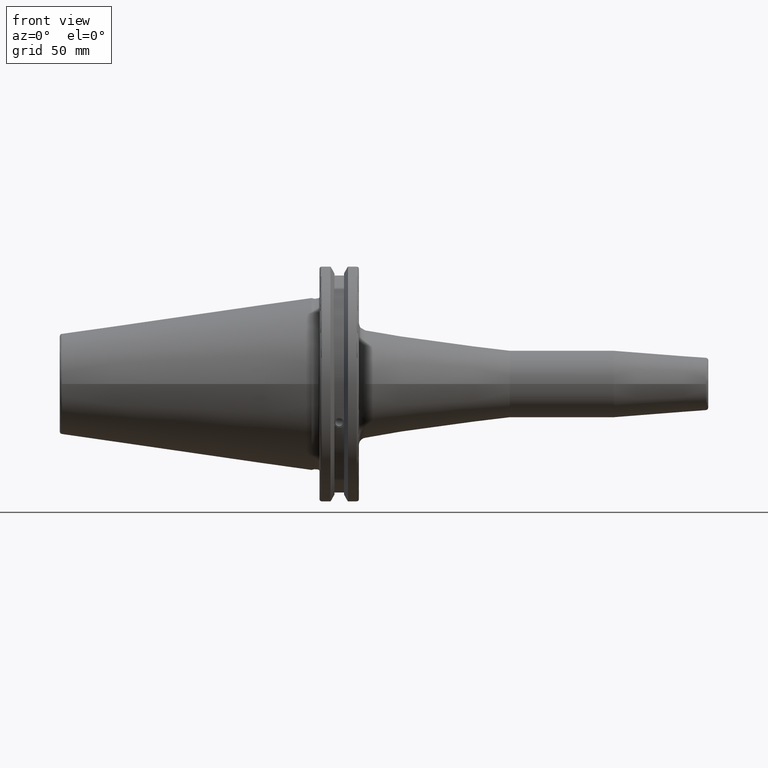
[diagram: clean part render]
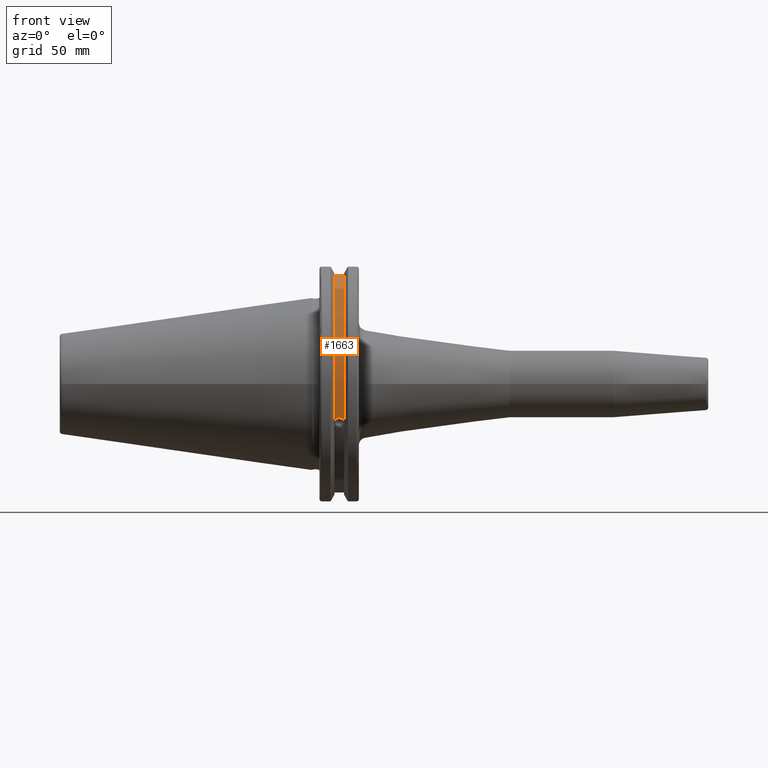
[diagram: same view with one face highlighted and labeled with its STEP entity id]
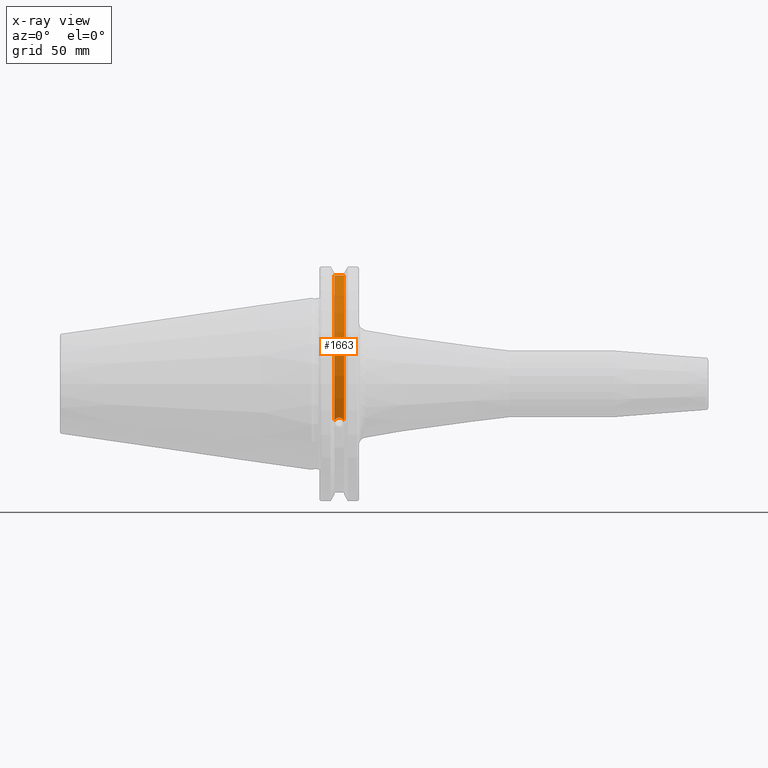
[diagram: x-ray of the same camera — body ghosted, the highlighted face saturated]
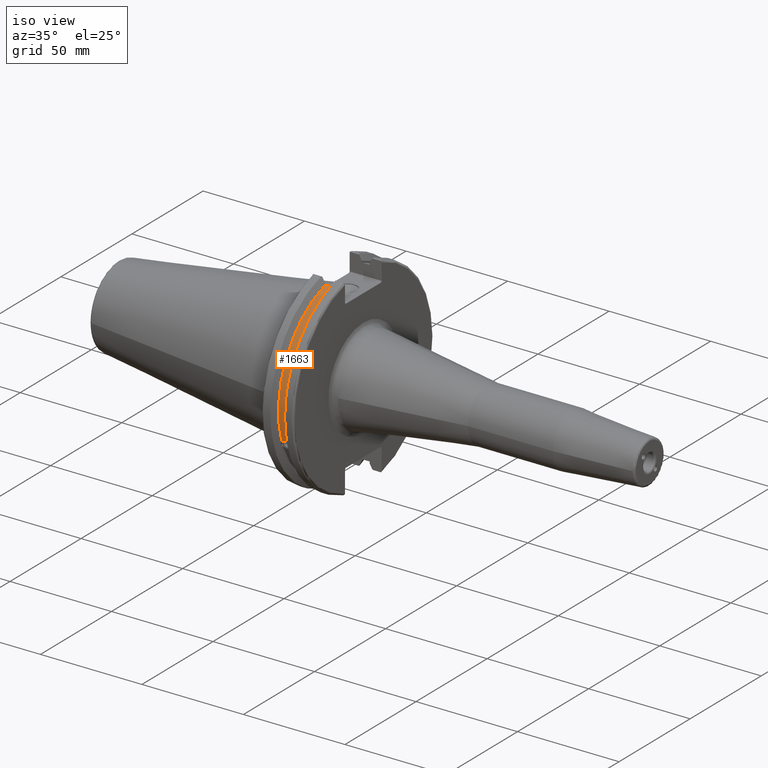
[diagram: same view with one face highlighted and labeled with its STEP entity id]
A machine part, front view. The second image highlights one B-rep face of the part: STEP entity #1663.
The next image is the same camera in x-ray: the body ghosted, the highlighted face saturated — about 0% of this face is hidden behind the body in this view.
A second angle (iso view) of the same face is appended — the face is thin or edge-on in the first view.
In plain terms, the highlighted cylindrical surface (partial cylindrical patch) has radius 45.6435 mm, axis along (1, 0, 0).
Its self-contained STEP definition (entity closure, byte-faithful):
#106=B_SPLINE_CURVE_WITH_KNOTS('',3,(#2624,#2625,#2626,#2627,#2628,#2629,
#2630,#2631,#2632,#2633,#2634,#2635,#2636,#2637),.UNSPECIFIED.,.F.,.F.,
(4,2,2,2,2,2,4),(0.40154831257669,0.474697095495631,0.553813286063443,0.632929476631254,
0.712045667199066,0.791161857766877,0.864310640685818),.UNSPECIFIED.);
#172=CYLINDRICAL_SURFACE('',#1867,45.6435);
#264=FACE_OUTER_BOUND('',#377,.T.);
#377=EDGE_LOOP('',(#1547,#1548,#1549,#1550));
#449=LINE('',#3156,#548);
#548=VECTOR('',#2190,10.);
#658=CIRCLE('',#1866,45.6435);
#659=CIRCLE('',#1868,45.6435);
#711=VERTEX_POINT('',#2621);
#712=VERTEX_POINT('',#2623);
#797=VERTEX_POINT('',#3153);
#798=VERTEX_POINT('',#3155);
#892=EDGE_CURVE('',#712,#711,#106,.T.);
#1007=EDGE_CURVE('',#798,#797,#449,.T.);
#1065=EDGE_CURVE('',#797,#712,#658,.T.);
#1066=EDGE_CURVE('',#798,#711,#659,.T.);
#1547=ORIENTED_EDGE('',*,*,#892,.T.);
#1548=ORIENTED_EDGE('',*,*,#1066,.F.);
#1549=ORIENTED_EDGE('',*,*,#1007,.T.);
#1550=ORIENTED_EDGE('',*,*,#1065,.T.);
#1663=ADVANCED_FACE('',(#264),#172,.T.);
#1866=AXIS2_PLACEMENT_3D('',#3322,#2327,#2328);
#1867=AXIS2_PLACEMENT_3D('',#3323,#2329,#2330);
#1868=AXIS2_PLACEMENT_3D('',#3324,#2331,#2332);
#2190=DIRECTION('',(-1.,0.,0.));
#2327=DIRECTION('center_axis',(1.,0.,0.));
#2328=DIRECTION('ref_axis',(0.,0.,-1.));
#2329=DIRECTION('center_axis',(1.,0.,0.));
#2330=DIRECTION('ref_axis',(0.,-0.888619069115281,0.458645996390125));
#2331=DIRECTION('center_axis',(1.,0.,0.));
#2332=DIRECTION('ref_axis',(0.,0.,-1.));
#2621=CARTESIAN_POINT('',(13.0491,-43.1779814500336,-14.7983448449669));
#2623=CARTESIAN_POINT('',(9.2191,-43.1779814500336,-14.7983448449669));
#2624=CARTESIAN_POINT('Ctrl Pts',(9.2191,-43.1779814500335,-14.7983448449669));
#2625=CARTESIAN_POINT('Ctrl Pts',(9.32532177598176,-43.2545173750974,-14.5750315766731));
#2626=CARTESIAN_POINT('Ctrl Pts',(9.47680807557665,-43.3223492818373,-14.3712521044637));
#2627=CARTESIAN_POINT('Ctrl Pts',(9.83560503400179,-43.4340904392251,-14.0300988117073));
#2628=CARTESIAN_POINT('Ctrl Pts',(10.0717203280543,-43.4832903960863,-13.8760243976176));
#2629=CARTESIAN_POINT('Ctrl Pts',(10.5891059167872,-43.54802519266,-13.6715068146718));
#2630=CARTESIAN_POINT('Ctrl Pts',(10.870379364774,-43.5636826100883,-13.6211104428929));
#2631=CARTESIAN_POINT('Ctrl Pts',(11.397820635226,-43.5636826100883,-13.6211104428929));
#2632=CARTESIAN_POINT('Ctrl Pts',(11.6790940832128,-43.54802519266,-13.6715068146718));
#2633=CARTESIAN_POINT('Ctrl Pts',(12.1964796719457,-43.4832903960863,-13.8760243976176));
#2634=CARTESIAN_POINT('Ctrl Pts',(12.4325949659982,-43.4340904392251,-14.0300988117073));
#2635=CARTESIAN_POINT('Ctrl Pts',(12.7913919244233,-43.3223492818373,-14.3712521044637));
#2636=CARTESIAN_POINT('Ctrl Pts',(12.9428782240182,-43.2545173750974,-14.5750315766731));
#2637=CARTESIAN_POINT('Ctrl Pts',(13.0491,-43.1779814500335,-14.7983448449669));
#3153=CARTESIAN_POINT('',(9.2191,-12.95,43.7678716897452));
#3155=CARTESIAN_POINT('',(13.0491,-12.95,43.7678716897452));
#3156=CARTESIAN_POINT('',(11.1341,-12.95,43.7678716897452));
#3322=CARTESIAN_POINT('Origin',(9.2191,0.,0.));
#3323=CARTESIAN_POINT('Origin',(11.1341,0.,0.));
#3324=CARTESIAN_POINT('Origin',(13.0491,0.,0.));